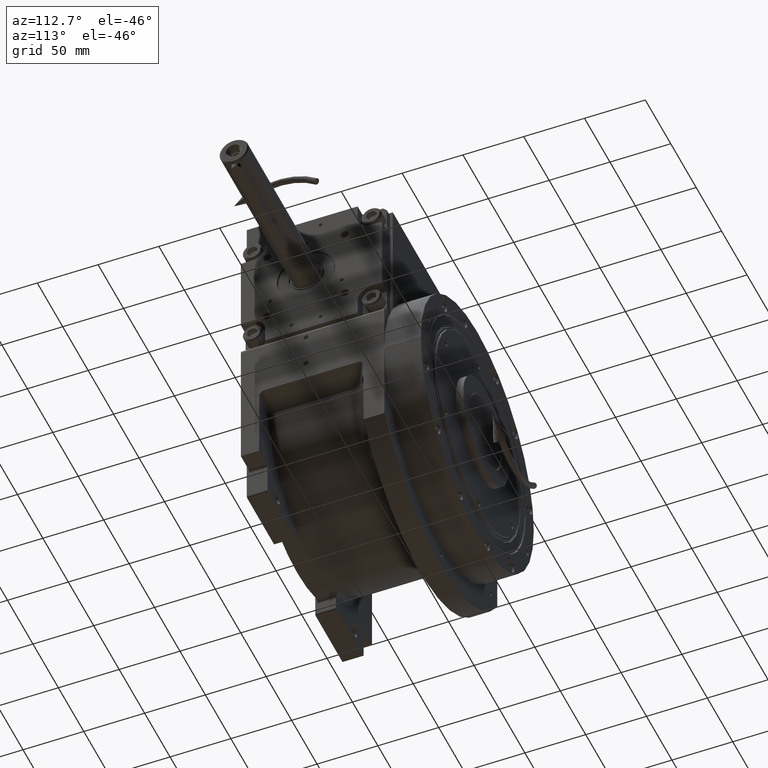
[diagram: clean part render]
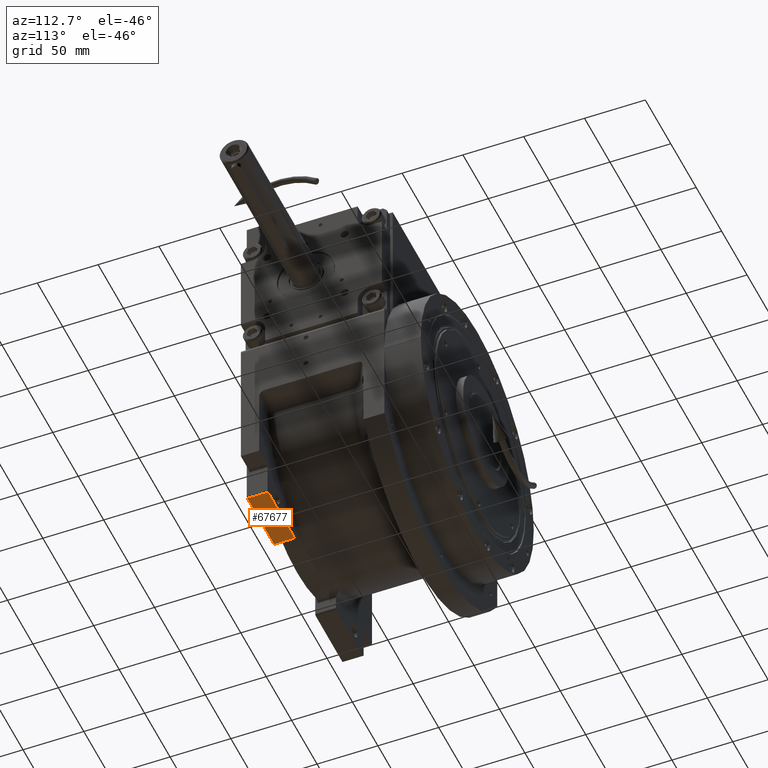
[diagram: same view with one face highlighted and labeled with its STEP entity id]
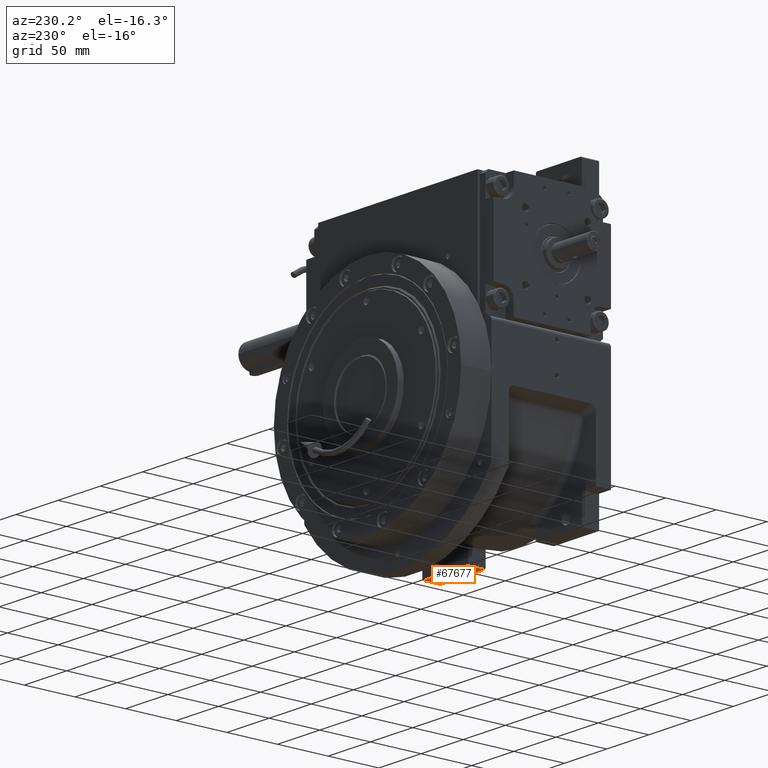
[diagram: same view with one face highlighted and labeled with its STEP entity id]
A machine part, auxiliary view. The second image highlights one B-rep face of the part: STEP entity #67677.
A second angle (auxiliary view) of the same face is appended — the face is thin or edge-on in the first view.
In plain terms, the highlighted planar face has unit normal (0, 0, -1).
Its self-contained STEP definition (entity closure, byte-faithful):
#725 = CARTESIAN_POINT ( 'NONE',  ( 41.00000000000000000, -55.50000000000000000, -100.0000000000000000 ) ) ;
#1011 = EDGE_LOOP ( 'NONE', ( #9009, #53501, #47461, #50449 ) ) ;
#2022 = CARTESIAN_POINT ( 'NONE',  ( 41.00000000000000000, -55.50000000000000000, -100.0000000000000000 ) ) ;
#5821 = CARTESIAN_POINT ( 'NONE',  ( 93.50000000000000000, -55.50000000000000000, -100.0000000000000000 ) ) ;
#9009 = ORIENTED_EDGE ( 'NONE', *, *, #63049, .T. ) ;
#10712 = LINE ( 'NONE', #5821, #65400 ) ;
#12505 = DIRECTION ( 'NONE',  ( 1.000000000000000000, 0.000000000000000000, 0.000000000000000000 ) ) ;
#12509 = DIRECTION ( 'NONE',  ( 1.000000000000000000, 0.000000000000000000, 0.000000000000000000 ) ) ;
#18347 = VERTEX_POINT ( 'NONE', #45862 ) ;
#22179 = AXIS2_PLACEMENT_3D ( 'NONE', #34999, #56156, #34644 ) ;
#23876 = EDGE_CURVE ( 'NONE', #33111, #29130, #64866, .T. ) ;
#26138 = VERTEX_POINT ( 'NONE', #36193 ) ;
#26986 = VECTOR ( 'NONE', #12505, 1000.000000000000000 ) ;
#28108 = LINE ( 'NONE', #54813, #45852 ) ;
#29130 = VERTEX_POINT ( 'NONE', #43753 ) ;
#33111 = VERTEX_POINT ( 'NONE', #725 ) ;
#34644 = DIRECTION ( 'NONE',  ( 1.000000000000000000, 0.000000000000000000, 0.000000000000000000 ) ) ;
#34857 = EDGE_CURVE ( 'NONE', #33111, #18347, #60379, .T. ) ;
#34999 = CARTESIAN_POINT ( 'NONE',  ( 40.00000000000000000, -38.50000000000000000, -100.0000000000000000 ) ) ;
#36193 = CARTESIAN_POINT ( 'NONE',  ( 93.50000000000000000, -38.50000000000000000, -100.0000000000000000 ) ) ;
#39844 = PLANE ( 'NONE',  #22179 ) ;
#40549 = FACE_OUTER_BOUND ( 'NONE', #1011, .T. ) ;
#42987 = EDGE_CURVE ( 'NONE', #18347, #26138, #10712, .T. ) ;
#43753 = CARTESIAN_POINT ( 'NONE',  ( 41.00000000000000000, -38.50000000000000000, -100.0000000000000000 ) ) ;
#44343 = DIRECTION ( 'NONE',  ( 0.000000000000000000, 1.000000000000000000, 0.000000000000000000 ) ) ;
#45852 = VECTOR ( 'NONE', #12509, 1000.000000000000000 ) ;
#45862 = CARTESIAN_POINT ( 'NONE',  ( 93.50000000000000000, -55.50000000000000000, -100.0000000000000000 ) ) ;
#47461 = ORIENTED_EDGE ( 'NONE', *, *, #34857, .F. ) ;
#49947 = CARTESIAN_POINT ( 'NONE',  ( 41.00000000000000000, -55.50000000000000000, -100.0000000000000000 ) ) ;
#50449 = ORIENTED_EDGE ( 'NONE', *, *, #23876, .T. ) ;
#53501 = ORIENTED_EDGE ( 'NONE', *, *, #42987, .F. ) ;
#54813 = CARTESIAN_POINT ( 'NONE',  ( 41.00000000000000000, -38.50000000000000000, -100.0000000000000000 ) ) ;
#56156 = DIRECTION ( 'NONE',  ( 0.000000000000000000, 0.000000000000000000, -1.000000000000000000 ) ) ;
#60379 = LINE ( 'NONE', #49947, #26986 ) ;
#62740 = VECTOR ( 'NONE', #44343, 1000.000000000000000 ) ;
#62762 = DIRECTION ( 'NONE',  ( 0.000000000000000000, 1.000000000000000000, 0.000000000000000000 ) ) ;
#63049 = EDGE_CURVE ( 'NONE', #29130, #26138, #28108, .T. ) ;
#64866 = LINE ( 'NONE', #2022, #62740 ) ;
#65400 = VECTOR ( 'NONE', #62762, 1000.000000000000000 ) ;
#67677 = ADVANCED_FACE ( 'NONE', ( #40549 ), #39844, .T. ) ;